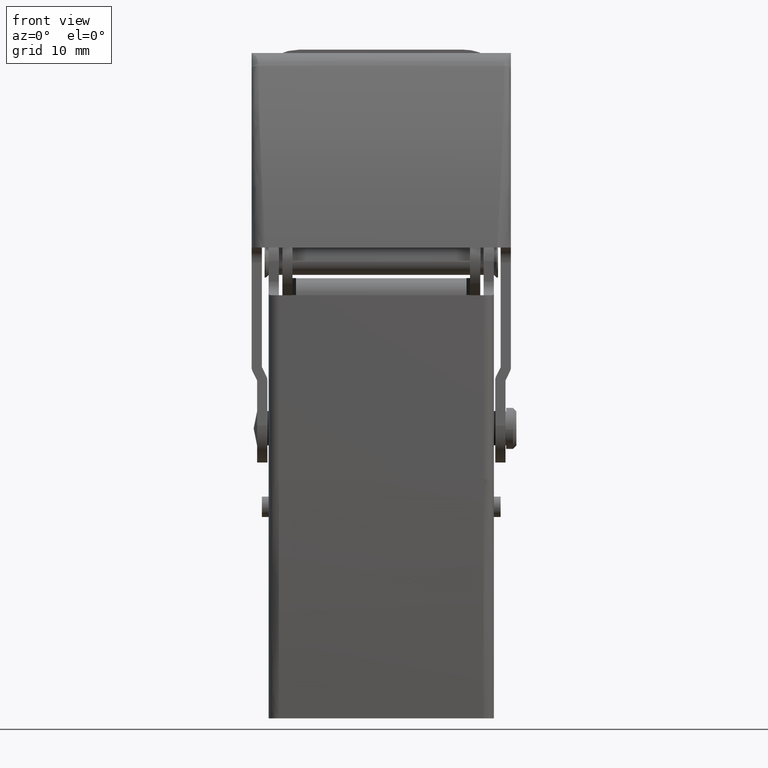
[diagram: clean part render]
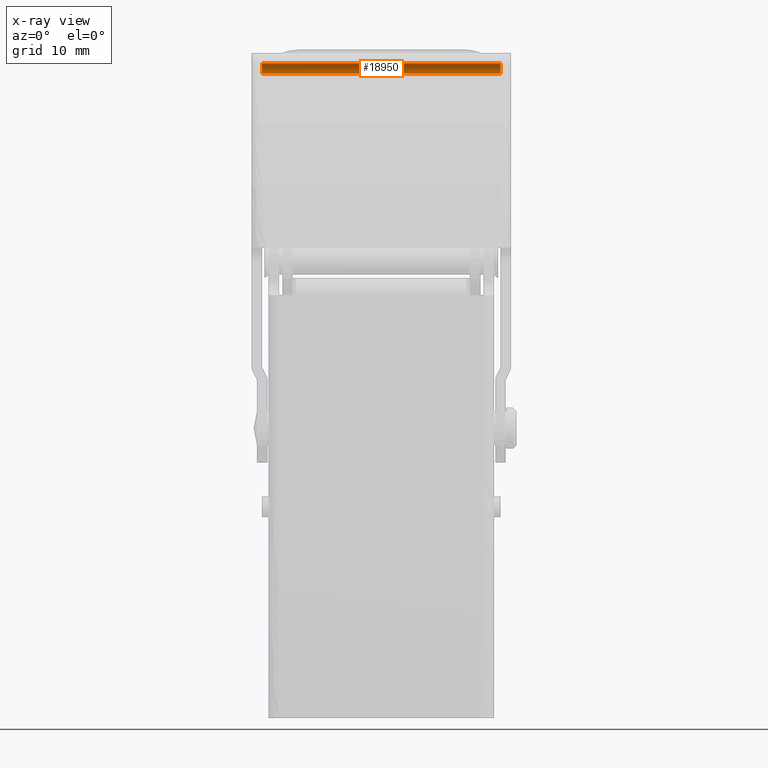
[diagram: x-ray — body ghosted, one internal face saturated and labeled with its STEP entity id]
A machine part, front view, then the same camera in x-ray: the body is ghosted and one INTERNAL B-rep face — a face not visible from any outside direction — is saturated and labeled: STEP entity #18950.
In plain terms, the highlighted face is a freeform B-spline surface patch.
Its self-contained STEP definition (entity closure, byte-faithful):
#18567=CARTESIAN_POINT('',(-17.490000000090600,-4.499999999998949,46.499999999825903));
#18568=VERTEX_POINT('',#18567);
#18575=CARTESIAN_POINT('',(17.489999999992701,-4.499999999998949,46.499999999825903));
#18576=VERTEX_POINT('',#18575);
#18582=CARTESIAN_POINT('',(17.489999999992701,-4.499999999998949,46.499999999825903));
#18583=CARTESIAN_POINT('',(-17.490000000090600,-4.499999999998949,46.499999999825903));
#18584=QUASI_UNIFORM_CURVE('',1,(#18582,#18583),.UNSPECIFIED.,.F.,.U.);
#18585=EDGE_CURVE('',#18576,#18568,#18584,.T.);
#18898=CARTESIAN_POINT('',(18.364499999994869,-4.500514012535643,46.460734577363013));
#18899=CARTESIAN_POINT('',(-18.386362500095970,-4.500514012535643,46.460734577363013));
#18900=CARTESIAN_POINT('',(18.364499999994869,-4.457261609748403,48.112477200656841));
#18901=CARTESIAN_POINT('',(-18.386362500095981,-4.457261609748403,48.112477200656841));
#18902=CARTESIAN_POINT('',(18.364499999994873,-6.105480113436847,47.996286718897188));
#18903=CARTESIAN_POINT('',(-18.386362500095974,-6.105480113436847,47.996286718897188));
#18911=(BOUNDED_SURFACE()B_SPLINE_SURFACE(1,2,((#18898,#18900,#18902),(#18899,#18901,#18903)),.UNSPECIFIED.,.F.,.F.,.U.)B_SPLINE_SURFACE_WITH_KNOTS((2,2),(3,3),(0.0,36.750862500090840),(0.0,2.656713516132561),.UNSPECIFIED.)GEOMETRIC_REPRESENTATION_ITEM()RATIONAL_B_SPLINE_SURFACE(((1.0,0.670944223154768,0.996392648609106),(1.0,0.670944223154768,0.996392648609106)))REPRESENTATION_ITEM('')SURFACE());
#18912=CARTESIAN_POINT('',(17.489999999992701,-5.999999999997870,47.999999999825903));
#18913=VERTEX_POINT('',#18912);
#18914=CARTESIAN_POINT('',(-17.490000000093751,-5.999999999998950,47.999999999825903));
#18915=VERTEX_POINT('',#18914);
#18916=CARTESIAN_POINT('',(17.489999999992701,-5.999999999997870,47.999999999825903));
#18917=CARTESIAN_POINT('',(-17.490000000093751,-5.999999999998950,47.999999999825903));
#18918=QUASI_UNIFORM_CURVE('',1,(#18916,#18917),.UNSPECIFIED.,.F.,.U.);
#18919=EDGE_CURVE('',#18913,#18915,#18918,.T.);
#18920=ORIENTED_EDGE('',*,*,#18919,.T.);
#18921=CARTESIAN_POINT('',(-17.490000000093762,-5.999999999998950,47.999999999825903));
#18922=CARTESIAN_POINT('',(-17.490000000093765,-4.499999999998949,47.999999999825903));
#18923=CARTESIAN_POINT('',(-17.490000000090600,-4.499999999998949,46.499999999825903));
#18931=(BOUNDED_CURVE()B_SPLINE_CURVE(2,(#18921,#18922,#18923),.UNSPECIFIED.,.F.,.U.)CURVE()GEOMETRIC_REPRESENTATION_ITEM()QUASI_UNIFORM_CURVE()RATIONAL_B_SPLINE_CURVE((1.0,0.707106781186548,1.0))REPRESENTATION_ITEM(''));
#18932=EDGE_CURVE('',#18915,#18568,#18931,.T.);
#18933=ORIENTED_EDGE('',*,*,#18932,.T.);
#18934=ORIENTED_EDGE('',*,*,#18585,.F.);
#18935=CARTESIAN_POINT('',(17.489999999992701,-4.499999999998949,46.499999999825903));
#18936=CARTESIAN_POINT('',(17.489999999992708,-4.499999999998949,47.999999999824816));
#18937=CARTESIAN_POINT('',(17.489999999992701,-5.999999999997870,47.999999999825903));
#18945=(BOUNDED_CURVE()B_SPLINE_CURVE(2,(#18935,#18936,#18937),.UNSPECIFIED.,.F.,.U.)CURVE()GEOMETRIC_REPRESENTATION_ITEM()QUASI_UNIFORM_CURVE()RATIONAL_B_SPLINE_CURVE((1.0,0.707106781186802,1.0))REPRESENTATION_ITEM(''));
#18946=EDGE_CURVE('',#18576,#18913,#18945,.T.);
#18947=ORIENTED_EDGE('',*,*,#18946,.T.);
#18948=EDGE_LOOP('',(#18920,#18933,#18934,#18947));
#18949=FACE_OUTER_BOUND('',#18948,.T.);
#18950=ADVANCED_FACE('',(#18949),#18911,.F.);